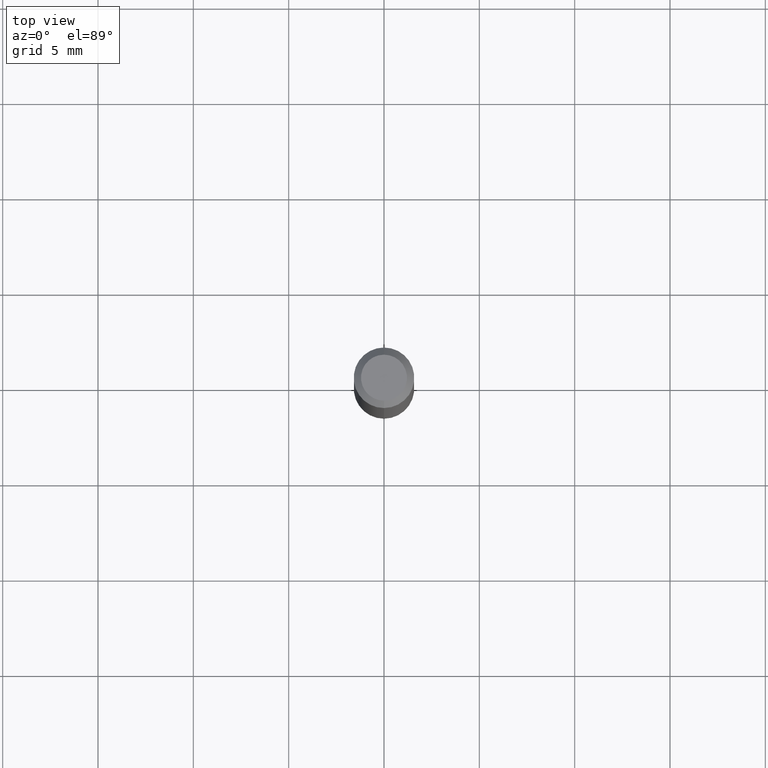
[diagram: clean part render]
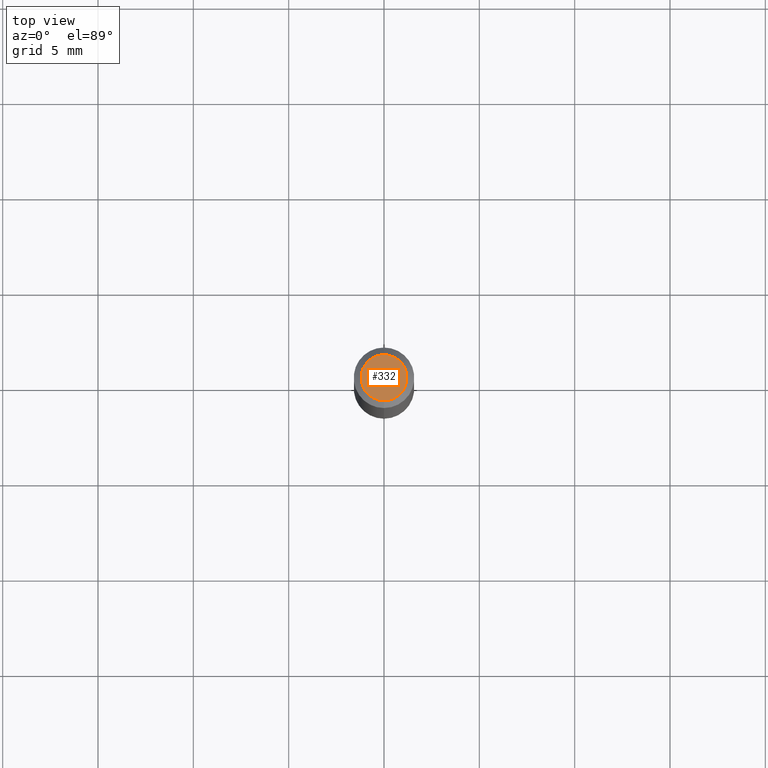
[diagram: same view with one face highlighted and labeled with its STEP entity id]
A machine part, top view. The second image highlights one B-rep face of the part: STEP entity #332.
In plain terms, the highlighted planar face has unit normal (0, -0, -1).
Its self-contained STEP definition (entity closure, byte-faithful):
#21 = CARTESIAN_POINT ( 'NONE',  ( -3.773273898774340269E-16, -0.04749999999999999362, 1.569832783351905735E-16 ) ) ;
#55 = CARTESIAN_POINT ( 'NONE',  ( 2.166990912298824479E-46, -3.093855821542496760E-32, -8.861202425844959291E-18 ) ) ;
#69 = VERTEX_POINT ( 'NONE', #475 ) ;
#122 = CARTESIAN_POINT ( 'NONE',  ( 2.166990912298824479E-46, -3.093855821542496760E-32, -8.861202425844959291E-18 ) ) ;
#136 = AXIS2_PLACEMENT_3D ( 'NONE', #336, #289, #448 ) ;
#172 = ORIENTED_EDGE ( 'NONE', *, *, #174, .T. ) ;
#174 = EDGE_CURVE ( 'NONE', #69, #237, #392, .T. ) ;
#210 = CIRCLE ( 'NONE', #470, 0.04749999999999999362 ) ;
#218 = DIRECTION ( 'NONE',  ( -6.982962677686266711E-15, -1.000000000000000000, 3.491462752863906305E-15 ) ) ;
#221 = FACE_OUTER_BOUND ( 'NONE', #370, .T. ) ;
#234 = AXIS2_PLACEMENT_3D ( 'NONE', #55, #378, #218 ) ;
#237 = VERTEX_POINT ( 'NONE', #21 ) ;
#261 = PLANE ( 'NONE',  #136 ) ;
#268 = DIRECTION ( 'NONE',  ( -6.982962677686266711E-15, -1.000000000000000000, 3.491462752863906305E-15 ) ) ;
#289 = DIRECTION ( 'NONE',  ( 2.445481784705072180E-29, -3.491462752863905910E-15, -1.000000000000000000 ) ) ;
#303 = DIRECTION ( 'NONE',  ( -2.445481784705072180E-29, 3.491462752863906305E-15, 1.000000000000000000 ) ) ;
#332 = ADVANCED_FACE ( 'NONE', ( #221 ), #261, .F. ) ;
#336 = CARTESIAN_POINT ( 'NONE',  ( 3.316907271900976096E-16, 0.04749999999999999362, -1.702750819739580409E-16 ) ) ;
#370 = EDGE_LOOP ( 'NONE', ( #172, #391 ) ) ;
#374 = EDGE_CURVE ( 'NONE', #237, #69, #210, .T. ) ;
#378 = DIRECTION ( 'NONE',  ( -2.445481784705072180E-29, 3.491462752863906305E-15, 1.000000000000000000 ) ) ;
#391 = ORIENTED_EDGE ( 'NONE', *, *, #374, .T. ) ;
#392 = CIRCLE ( 'NONE', #234, 0.04749999999999999362 ) ;
#448 = DIRECTION ( 'NONE',  ( 6.982962677686265922E-15, 1.000000000000000000, -3.491462752863905910E-15 ) ) ;
#470 = AXIS2_PLACEMENT_3D ( 'NONE', #122, #303, #268 ) ;
#475 = CARTESIAN_POINT ( 'NONE',  ( 3.840629472727447874E-16, 0.04749999999999999362, -1.747056831868804643E-16 ) ) ;